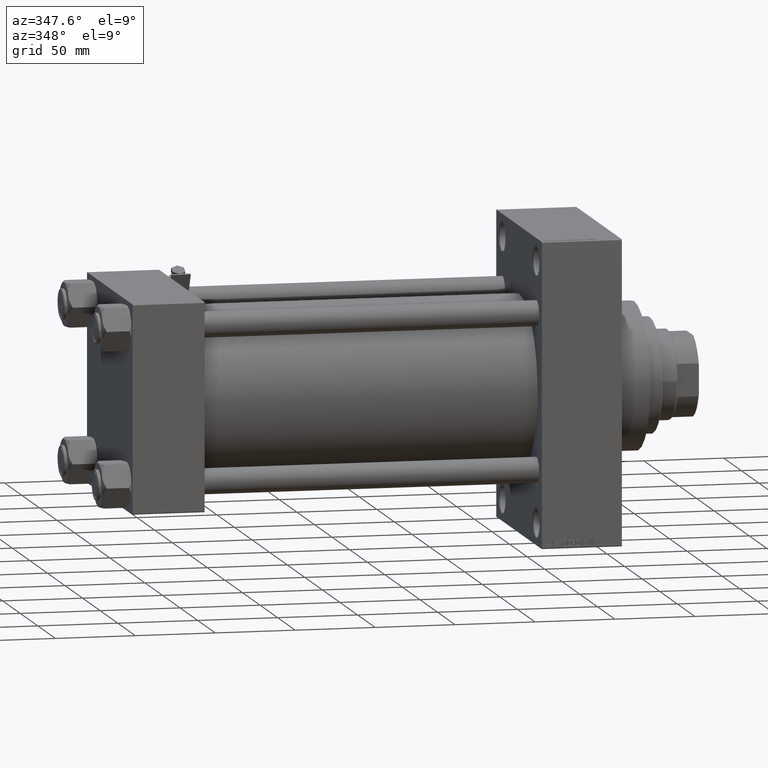
[diagram: clean part render]
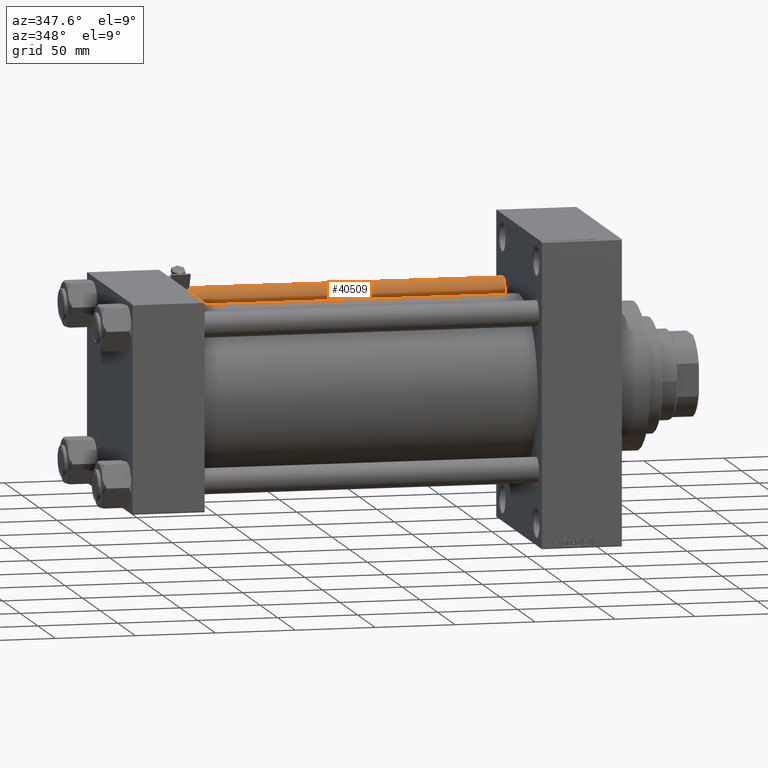
[diagram: same view with one face highlighted and labeled with its STEP entity id]
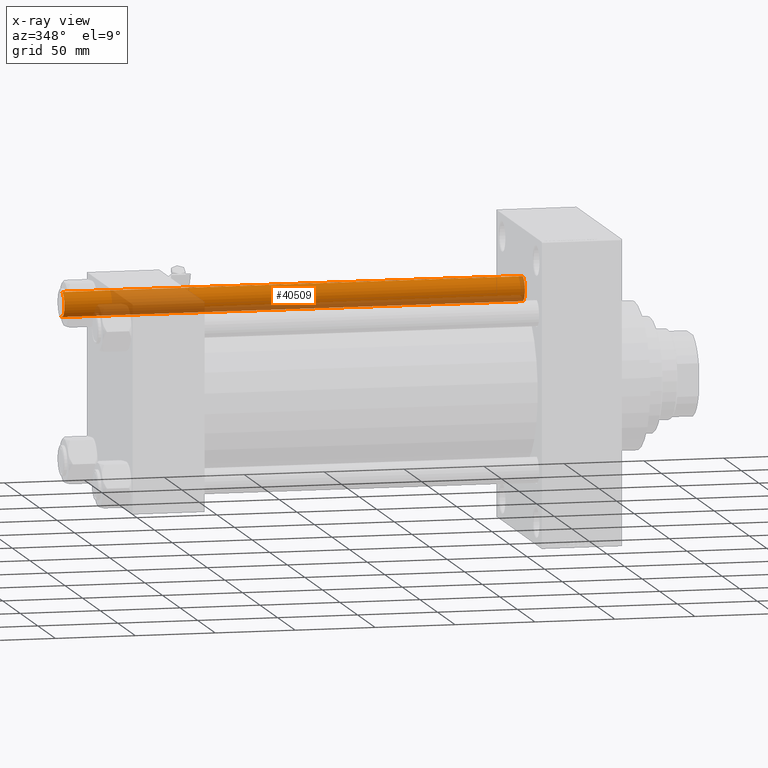
[diagram: x-ray of the same camera — body ghosted, the highlighted face saturated]
A machine part, auxiliary view. The second image highlights one B-rep face of the part: STEP entity #40509.
The next image is the same camera in x-ray: the body ghosted, the highlighted face saturated — about 38% of this face is hidden behind the body in this view.
In plain terms, the highlighted cylindrical surface (edge-blend (fillet) strip) has radius 8 mm, axis along (-1, -0, 0).
Its self-contained STEP definition (entity closure, byte-faithful):
#4025 = CARTESIAN_POINT ( 'NONE',  ( 0.000000000000000000, 0.000000000000000000, 0.5000000000000004441 ) ) ;
#5122 = ORIENTED_EDGE ( 'NONE', *, *, #27735, .T. ) ;
#8466 = DIRECTION ( 'NONE',  ( -0.000000000000000000, -0.000000000000000000, 1.000000000000000000 ) ) ;
#8902 = ORIENTED_EDGE ( 'NONE', *, *, #48186, .T. ) ;
#9885 = CARTESIAN_POINT ( 'NONE',  ( -8.000000000000000000, 0.000000000000000000, 0.5000000000000004441 ) ) ;
#10327 = CARTESIAN_POINT ( 'NONE',  ( -8.000000000000000000, 0.000000000000000000, 288.5000000000000000 ) ) ;
#11441 = DIRECTION ( 'NONE',  ( 1.000000000000000000, 0.000000000000000000, 0.000000000000000000 ) ) ;
#13398 = AXIS2_PLACEMENT_3D ( 'NONE', #4025, #8466, #11441 ) ;
#14478 = LINE ( 'NONE', #25618, #42878 ) ;
#14663 = VERTEX_POINT ( 'NONE', #42599 ) ;
#16749 = EDGE_LOOP ( 'NONE', ( #46131, #8902, #5122, #33697 ) ) ;
#16809 = CYLINDRICAL_SURFACE ( 'NONE', #45750, 8.000000000000000000 ) ;
#17382 = DIRECTION ( 'NONE',  ( 0.000000000000000000, 0.000000000000000000, -1.000000000000000000 ) ) ;
#19990 = CIRCLE ( 'NONE', #36458, 8.000000000000000000 ) ;
#20472 = CARTESIAN_POINT ( 'NONE',  ( -8.000000000000000000, 0.000000000000000000, 289.0000000000000000 ) ) ;
#25618 = CARTESIAN_POINT ( 'NONE',  ( 8.000000000000000000, 9.797174393178825657E-16, 289.0000000000000000 ) ) ;
#26030 = CIRCLE ( 'NONE', #13398, 8.000000000000000000 ) ;
#27316 = VECTOR ( 'NONE', #31339, 1000.000000000000000 ) ;
#27683 = FACE_OUTER_BOUND ( 'NONE', #16749, .T. ) ;
#27735 = EDGE_CURVE ( 'NONE', #32054, #28073, #40143, .T. ) ;
#28073 = VERTEX_POINT ( 'NONE', #9885 ) ;
#29795 = DIRECTION ( 'NONE',  ( -0.000000000000000000, -0.000000000000000000, -1.000000000000000000 ) ) ;
#31229 = CARTESIAN_POINT ( 'NONE',  ( 8.000000000000000000, 9.797174393178825657E-16, 0.5000000000000004441 ) ) ;
#31339 = DIRECTION ( 'NONE',  ( -0.000000000000000000, -0.000000000000000000, -1.000000000000000000 ) ) ;
#31642 = VERTEX_POINT ( 'NONE', #31229 ) ;
#31880 = CARTESIAN_POINT ( 'NONE',  ( 0.000000000000000000, 0.000000000000000000, 289.0000000000000000 ) ) ;
#32054 = VERTEX_POINT ( 'NONE', #10327 ) ;
#32714 = DIRECTION ( 'NONE',  ( 1.000000000000000000, 0.000000000000000000, 0.000000000000000000 ) ) ;
#33189 = CARTESIAN_POINT ( 'NONE',  ( 0.000000000000000000, 0.000000000000000000, 288.5000000000000000 ) ) ;
#33697 = ORIENTED_EDGE ( 'NONE', *, *, #39987, .T. ) ;
#36458 = AXIS2_PLACEMENT_3D ( 'NONE', #33189, #17382, #32714 ) ;
#39987 = EDGE_CURVE ( 'NONE', #28073, #31642, #26030, .T. ) ;
#40143 = LINE ( 'NONE', #20472, #27316 ) ;
#40509 = ADVANCED_FACE ( 'NONE', ( #27683 ), #16809, .T. ) ;
#42599 = CARTESIAN_POINT ( 'NONE',  ( 8.000000000000000000, 9.797174393178825657E-16, 288.5000000000000000 ) ) ;
#42878 = VECTOR ( 'NONE', #29795, 1000.000000000000000 ) ;
#42989 = DIRECTION ( 'NONE',  ( -1.000000000000000000, 0.000000000000000000, 0.000000000000000000 ) ) ;
#45750 = AXIS2_PLACEMENT_3D ( 'NONE', #31880, #46936, #42989 ) ;
#46131 = ORIENTED_EDGE ( 'NONE', *, *, #48679, .F. ) ;
#46936 = DIRECTION ( 'NONE',  ( -0.000000000000000000, -0.000000000000000000, -1.000000000000000000 ) ) ;
#48186 = EDGE_CURVE ( 'NONE', #14663, #32054, #19990, .T. ) ;
#48679 = EDGE_CURVE ( 'NONE', #14663, #31642, #14478, .T. ) ;